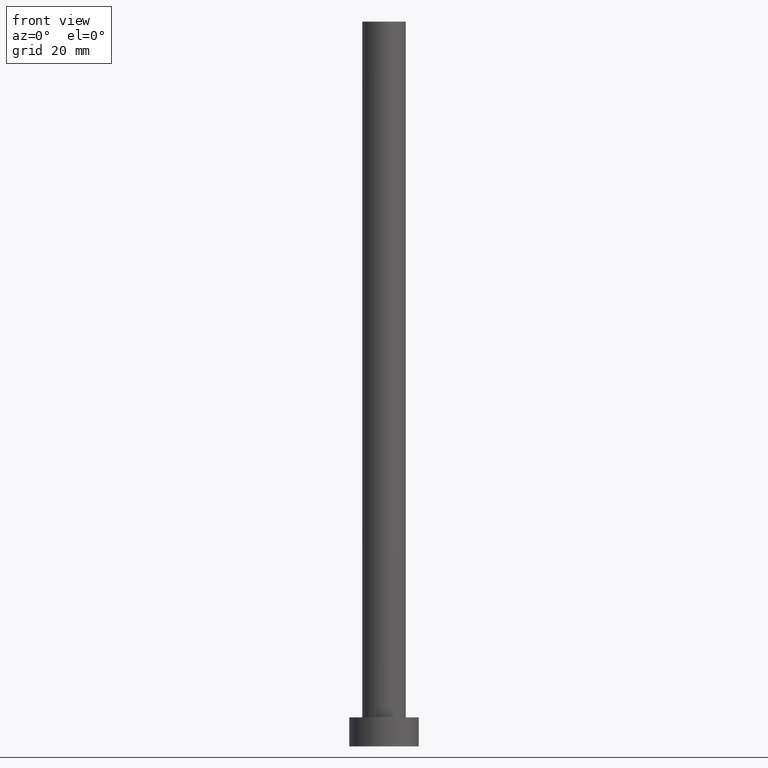
[diagram: clean part render]
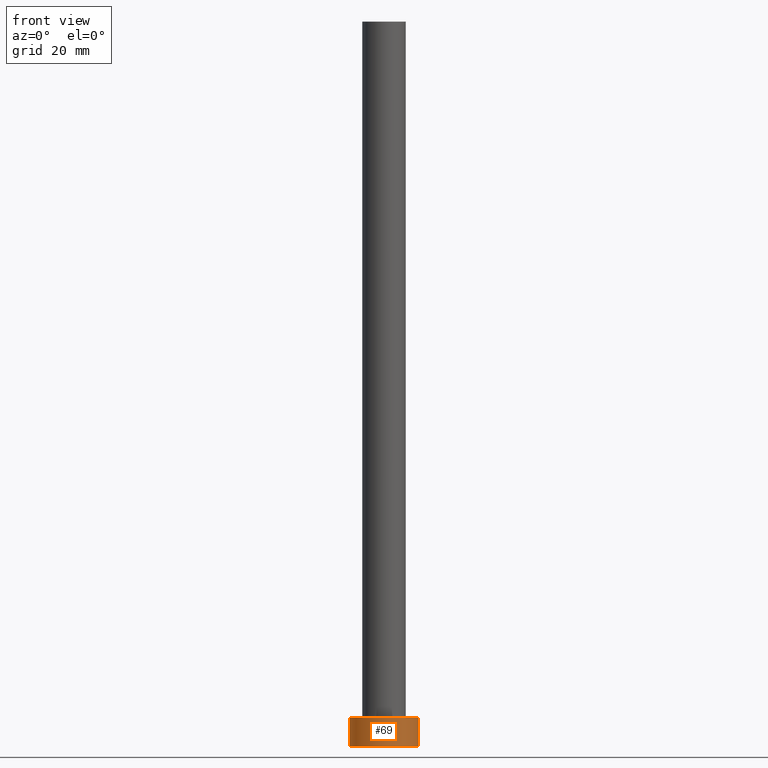
[diagram: same view with one face highlighted and labeled with its STEP entity id]
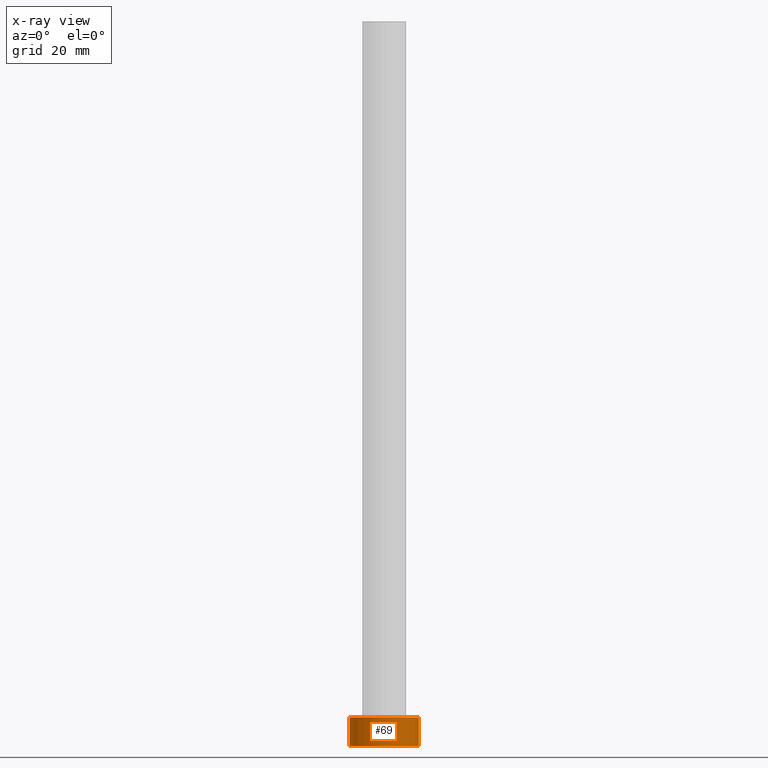
[diagram: x-ray of the same camera — body ghosted, the highlighted face saturated]
A machine part, front view. The second image highlights one B-rep face of the part: STEP entity #69.
The next image is the same camera in x-ray: the body ghosted, the highlighted face saturated — about 0% of this face is hidden behind the body in this view.
In plain terms, the highlighted cylindrical surface (edge-blend (fillet) strip) has radius 6 mm, axis along (-0, -0, -1).
Its self-contained STEP definition (entity closure, byte-faithful):
#3 = CARTESIAN_POINT ( 'NONE',  ( -6.000000000000000888, 0.000000000000000000, 5.000000000000000000 ) ) ;
#14 = CARTESIAN_POINT ( 'NONE',  ( -6.000000000000000888, 0.000000000000000000, 5.000000000000000000 ) ) ;
#30 = EDGE_CURVE ( 'NONE', #202, #43, #55, .T. ) ;
#38 = DIRECTION ( 'NONE',  ( 1.000000000000000000, 0.000000000000000000, 0.000000000000000000 ) ) ;
#40 = FACE_OUTER_BOUND ( 'NONE', #132, .T. ) ;
#43 = VERTEX_POINT ( 'NONE', #149 ) ;
#55 = LINE ( 'NONE', #74, #222 ) ;
#57 = CIRCLE ( 'NONE', #104, 6.000000000000000888 ) ;
#58 = CARTESIAN_POINT ( 'NONE',  ( 0.000000000000000000, 0.000000000000000000, 0.000000000000000000 ) ) ;
#62 = DIRECTION ( 'NONE',  ( -0.000000000000000000, -0.000000000000000000, -1.000000000000000000 ) ) ;
#65 = CIRCLE ( 'NONE', #201, 6.000000000000000888 ) ;
#69 = ADVANCED_FACE ( 'NONE', ( #40 ), #232, .T. ) ;
#70 = ORIENTED_EDGE ( 'NONE', *, *, #30, .F. ) ;
#74 = CARTESIAN_POINT ( 'NONE',  ( 6.000000000000000888, 7.347880794884120722E-16, 5.000000000000000000 ) ) ;
#87 = ORIENTED_EDGE ( 'NONE', *, *, #112, .F. ) ;
#92 = CARTESIAN_POINT ( 'NONE',  ( -6.000000000000000888, 0.000000000000000000, 0.000000000000000000 ) ) ;
#104 = AXIS2_PLACEMENT_3D ( 'NONE', #137, #210, #38 ) ;
#105 = VERTEX_POINT ( 'NONE', #92 ) ;
#110 = DIRECTION ( 'NONE',  ( -0.000000000000000000, -0.000000000000000000, -1.000000000000000000 ) ) ;
#112 = EDGE_CURVE ( 'NONE', #186, #202, #57, .T. ) ;
#125 = DIRECTION ( 'NONE',  ( -0.000000000000000000, -0.000000000000000000, -1.000000000000000000 ) ) ;
#132 = EDGE_LOOP ( 'NONE', ( #70, #87, #182, #241 ) ) ;
#136 = LINE ( 'NONE', #3, #206 ) ;
#137 = CARTESIAN_POINT ( 'NONE',  ( 0.000000000000000000, 0.000000000000000000, 5.000000000000000000 ) ) ;
#149 = CARTESIAN_POINT ( 'NONE',  ( 6.000000000000000888, 7.347880794884120722E-16, 0.000000000000000000 ) ) ;
#154 = CARTESIAN_POINT ( 'NONE',  ( 0.000000000000000000, 0.000000000000000000, 5.000000000000000000 ) ) ;
#168 = AXIS2_PLACEMENT_3D ( 'NONE', #154, #62, #248 ) ;
#173 = EDGE_CURVE ( 'NONE', #105, #43, #65, .T. ) ;
#174 = DIRECTION ( 'NONE',  ( 0.000000000000000000, 0.000000000000000000, 1.000000000000000000 ) ) ;
#182 = ORIENTED_EDGE ( 'NONE', *, *, #236, .T. ) ;
#186 = VERTEX_POINT ( 'NONE', #14 ) ;
#189 = DIRECTION ( 'NONE',  ( 1.000000000000000000, 0.000000000000000000, 0.000000000000000000 ) ) ;
#201 = AXIS2_PLACEMENT_3D ( 'NONE', #58, #174, #189 ) ;
#202 = VERTEX_POINT ( 'NONE', #233 ) ;
#206 = VECTOR ( 'NONE', #125, 1000.000000000000000 ) ;
#210 = DIRECTION ( 'NONE',  ( 0.000000000000000000, 0.000000000000000000, 1.000000000000000000 ) ) ;
#222 = VECTOR ( 'NONE', #110, 1000.000000000000000 ) ;
#232 = CYLINDRICAL_SURFACE ( 'NONE', #168, 6.000000000000000888 ) ;
#233 = CARTESIAN_POINT ( 'NONE',  ( 6.000000000000000888, 7.347880794884120722E-16, 5.000000000000000000 ) ) ;
#236 = EDGE_CURVE ( 'NONE', #186, #105, #136, .T. ) ;
#241 = ORIENTED_EDGE ( 'NONE', *, *, #173, .T. ) ;
#248 = DIRECTION ( 'NONE',  ( -1.000000000000000000, 0.000000000000000000, 0.000000000000000000 ) ) ;